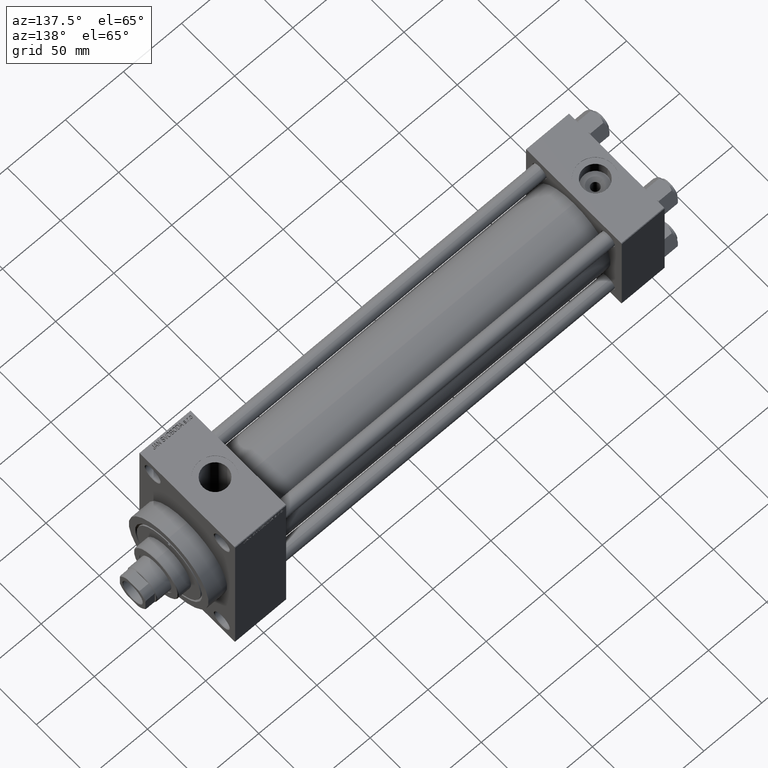
[diagram: clean part render]
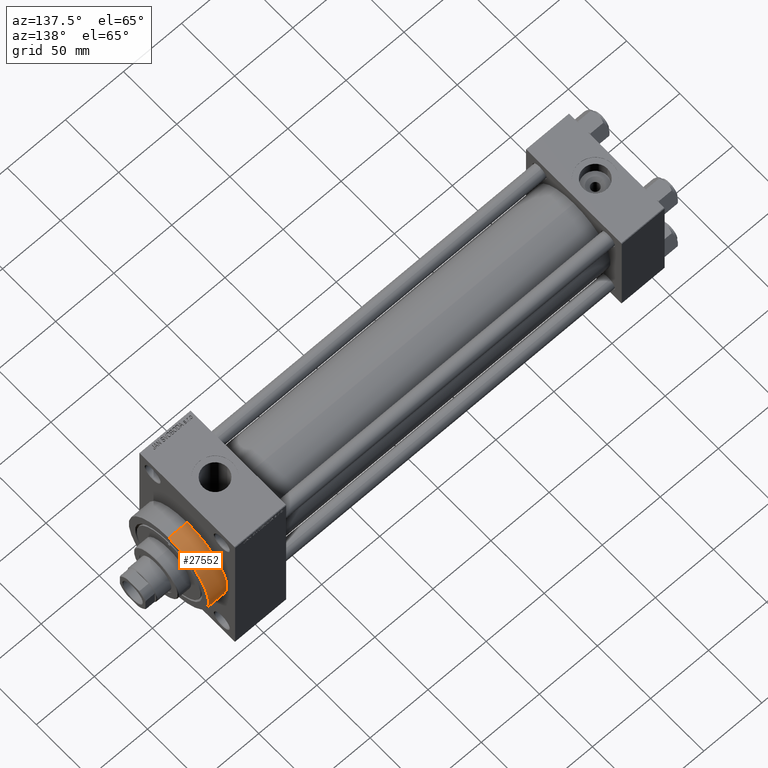
[diagram: same view with one face highlighted and labeled with its STEP entity id]
A machine part, auxiliary view. The second image highlights one B-rep face of the part: STEP entity #27552.
In plain terms, the highlighted cylindrical surface (partial cylindrical patch) has radius 37.5 mm, axis along (-1, -0, -0).
Its self-contained STEP definition (entity closure, byte-faithful):
#996 = FACE_OUTER_BOUND ( 'NONE', #42921, .T. ) ;
#1472 = CARTESIAN_POINT ( 'NONE',  ( 385.9999999999999432, 0.000000000000000000, 0.000000000000000000 ) ) ;
#1620 = AXIS2_PLACEMENT_3D ( 'NONE', #1472, #4124, #27140 ) ;
#4124 = DIRECTION ( 'NONE',  ( -1.000000000000000000, -0.000000000000000000, -0.000000000000000000 ) ) ;
#4704 = VERTEX_POINT ( 'NONE', #46025 ) ;
#4864 = DIRECTION ( 'NONE',  ( 1.000000000000000000, 0.000000000000000000, 0.000000000000000000 ) ) ;
#6181 = DIRECTION ( 'NONE',  ( 1.000000000000000000, 0.000000000000000000, 0.000000000000000000 ) ) ;
#7460 = LINE ( 'NONE', #7708, #38363 ) ;
#7602 = CIRCLE ( 'NONE', #11415, 37.50000000000000711 ) ;
#7708 = CARTESIAN_POINT ( 'NONE',  ( 385.9999999999999432, 4.592425496802575156E-15, -37.50000000000000711 ) ) ;
#8516 = CARTESIAN_POINT ( 'NONE',  ( 385.9999999999999432, 0.000000000000000000, 37.50000000000000711 ) ) ;
#9416 = ORIENTED_EDGE ( 'NONE', *, *, #12111, .T. ) ;
#10529 = VERTEX_POINT ( 'NONE', #20153 ) ;
#11322 = CARTESIAN_POINT ( 'NONE',  ( 385.9999999999999432, 0.000000000000000000, 0.000000000000000000 ) ) ;
#11415 = AXIS2_PLACEMENT_3D ( 'NONE', #27999, #6181, #20337 ) ;
#12111 = EDGE_CURVE ( 'NONE', #10529, #15607, #7460, .T. ) ;
#12489 = CYLINDRICAL_SURFACE ( 'NONE', #1620, 37.50000000000000711 ) ;
#14117 = ORIENTED_EDGE ( 'NONE', *, *, #19047, .F. ) ;
#15607 = VERTEX_POINT ( 'NONE', #43449 ) ;
#15934 = VECTOR ( 'NONE', #30583, 1000.000000000000000 ) ;
#15986 = AXIS2_PLACEMENT_3D ( 'NONE', #11322, #4864, #19500 ) ;
#17560 = DIRECTION ( 'NONE',  ( -1.000000000000000000, -0.000000000000000000, -0.000000000000000000 ) ) ;
#17873 = VERTEX_POINT ( 'NONE', #8516 ) ;
#19047 = EDGE_CURVE ( 'NONE', #10529, #17873, #29790, .T. ) ;
#19500 = DIRECTION ( 'NONE',  ( 0.000000000000000000, 0.000000000000000000, -1.000000000000000000 ) ) ;
#20153 = CARTESIAN_POINT ( 'NONE',  ( 385.9999999999999432, 4.592425496802575156E-15, -37.50000000000000711 ) ) ;
#20337 = DIRECTION ( 'NONE',  ( 0.000000000000000000, 0.000000000000000000, -1.000000000000000000 ) ) ;
#22576 = EDGE_CURVE ( 'NONE', #15607, #4704, #7602, .T. ) ;
#22743 = ORIENTED_EDGE ( 'NONE', *, *, #45969, .F. ) ;
#27001 = CARTESIAN_POINT ( 'NONE',  ( 385.9999999999999432, 0.000000000000000000, 37.50000000000000711 ) ) ;
#27140 = DIRECTION ( 'NONE',  ( 0.000000000000000000, 0.000000000000000000, 1.000000000000000000 ) ) ;
#27552 = ADVANCED_FACE ( 'NONE', ( #996 ), #12489, .T. ) ;
#27999 = CARTESIAN_POINT ( 'NONE',  ( 369.9999999999999432, 0.000000000000000000, 0.000000000000000000 ) ) ;
#29790 = CIRCLE ( 'NONE', #15986, 37.50000000000000711 ) ;
#30583 = DIRECTION ( 'NONE',  ( -1.000000000000000000, -0.000000000000000000, -0.000000000000000000 ) ) ;
#32953 = ORIENTED_EDGE ( 'NONE', *, *, #22576, .T. ) ;
#34665 = LINE ( 'NONE', #27001, #15934 ) ;
#38363 = VECTOR ( 'NONE', #17560, 1000.000000000000000 ) ;
#42921 = EDGE_LOOP ( 'NONE', ( #14117, #9416, #32953, #22743 ) ) ;
#43449 = CARTESIAN_POINT ( 'NONE',  ( 369.9999999999999432, 4.592425496802575156E-15, -37.50000000000000711 ) ) ;
#45969 = EDGE_CURVE ( 'NONE', #17873, #4704, #34665, .T. ) ;
#46025 = CARTESIAN_POINT ( 'NONE',  ( 369.9999999999999432, 0.000000000000000000, 37.50000000000000711 ) ) ;